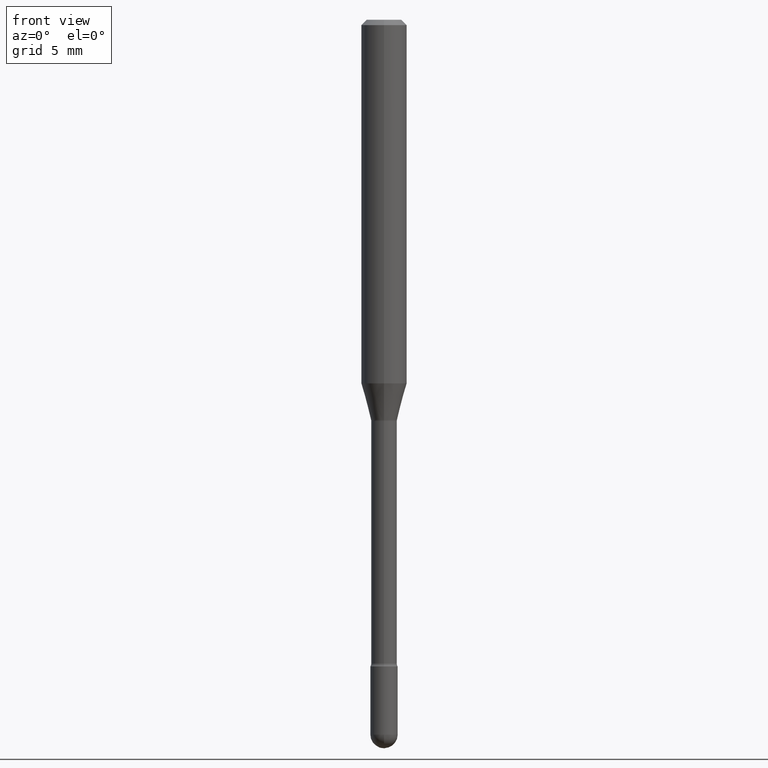
[diagram: clean part render]
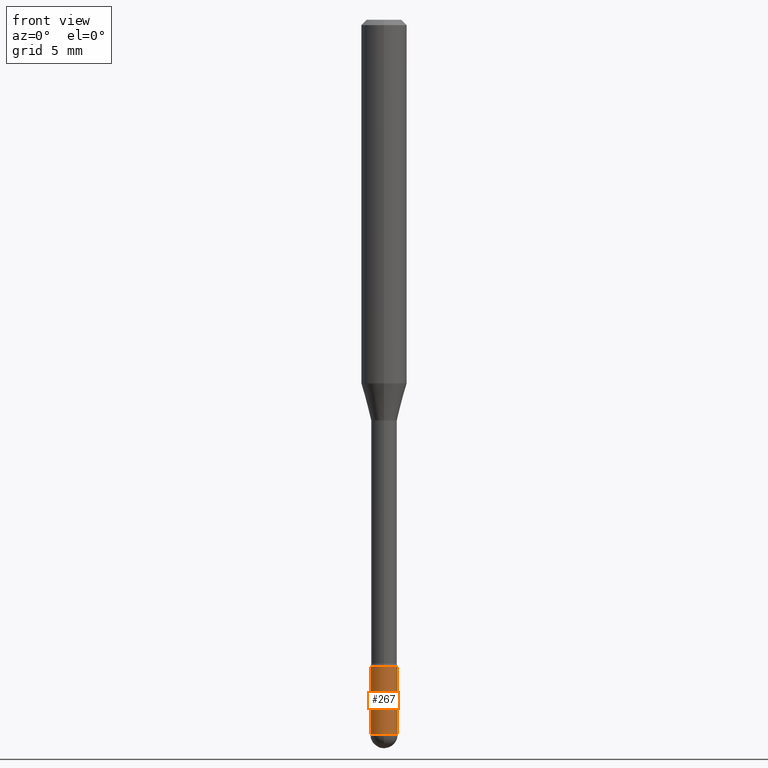
[diagram: same view with one face highlighted and labeled with its STEP entity id]
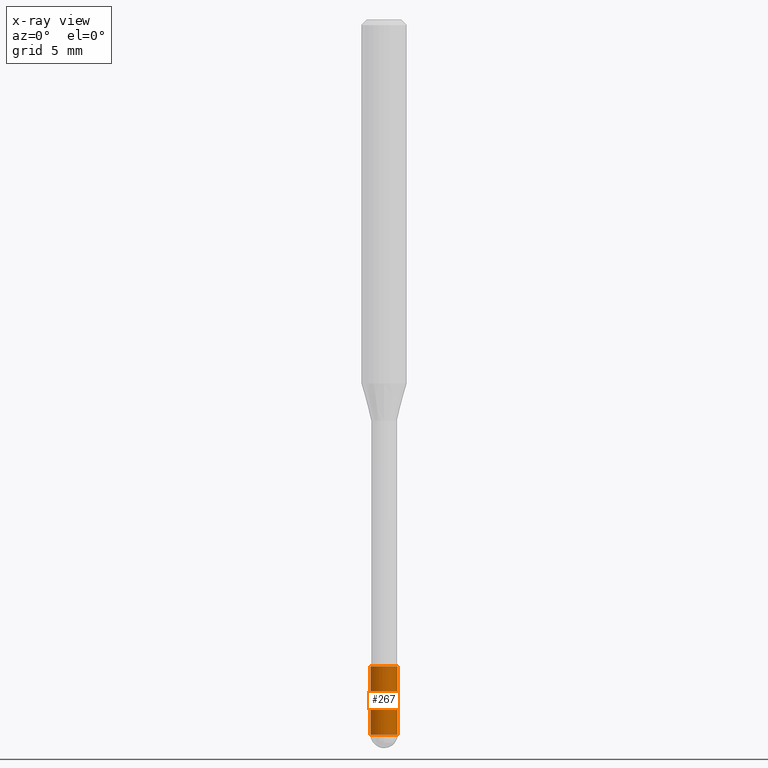
[diagram: x-ray of the same camera — body ghosted, the highlighted face saturated]
A machine part, front view. The second image highlights one B-rep face of the part: STEP entity #267.
The next image is the same camera in x-ray: the body ghosted, the highlighted face saturated — about 0% of this face is hidden behind the body in this view.
In plain terms, the highlighted cylindrical surface (edge-blend (fillet) strip) has radius 0.9525 mm, axis along (-0, 0, 1).
Its self-contained STEP definition (entity closure, byte-faithful):
#19 = VERTEX_POINT ( 'NONE', #195 ) ;
#40 = VERTEX_POINT ( 'NONE', #142 ) ;
#43 = EDGE_CURVE ( 'NONE', #40, #469, #308, .T. ) ;
#64 = LINE ( 'NONE', #515, #306 ) ;
#87 = VERTEX_POINT ( 'NONE', #194 ) ;
#91 = AXIS2_PLACEMENT_3D ( 'NONE', #140, #311, #155 ) ;
#95 = EDGE_CURVE ( 'NONE', #469, #19, #222, .T. ) ;
#100 = CYLINDRICAL_SURFACE ( 'NONE', #91, 0.03749999999999999861 ) ;
#108 = DIRECTION ( 'NONE',  ( 1.000000000000000000, -6.982962677686268288E-15, 0.000000000000000000 ) ) ;
#125 = ORIENTED_EDGE ( 'NONE', *, *, #43, .F. ) ;
#128 = CARTESIAN_POINT ( 'NONE',  ( 4.340707130978617347E-29, -6.197379376446583794E-15, -1.775000000000000133 ) ) ;
#140 = CARTESIAN_POINT ( 'NONE',  ( 0.000000000000000000, 0.000000000000000000, 0.000000000000000000 ) ) ;
#142 = CARTESIAN_POINT ( 'NONE',  ( -0.03749999999999999861, -6.258252226053091317E-15, -1.962499999999999689 ) ) ;
#149 = AXIS2_PLACEMENT_3D ( 'NONE', #158, #503, #108 ) ;
#155 = DIRECTION ( 'NONE',  ( 1.000000000000000000, -6.982962677686266711E-15, 4.876176775795935793E-29 ) ) ;
#158 = CARTESIAN_POINT ( 'NONE',  ( 4.799232532138329338E-29, -6.852032127479672087E-15, -1.962499999999999689 ) ) ;
#159 = ORIENTED_EDGE ( 'NONE', *, *, #95, .F. ) ;
#187 = ORIENTED_EDGE ( 'NONE', *, *, #501, .T. ) ;
#189 = ORIENTED_EDGE ( 'NONE', *, *, #247, .T. ) ;
#194 = CARTESIAN_POINT ( 'NONE',  ( -2.664535259099897351E-16, -0.03750000000000687506, -1.962499999999999689 ) ) ;
#195 = CARTESIAN_POINT ( 'NONE',  ( 0.03749999999999999861, -6.459240476859818795E-15, -1.775000000000000133 ) ) ;
#203 = DIRECTION ( 'NONE',  ( 1.000000000000000000, -6.982962677686268288E-15, 0.000000000000000000 ) ) ;
#222 = CIRCLE ( 'NONE', #278, 0.03749999999999999861 ) ;
#230 = AXIS2_PLACEMENT_3D ( 'NONE', #413, #408, #203 ) ;
#242 = EDGE_LOOP ( 'NONE', ( #125, #187, #273, #189, #159 ) ) ;
#247 = EDGE_CURVE ( 'NONE', #542, #19, #64, .T. ) ;
#267 = ADVANCED_FACE ( 'NONE', ( #271 ), #100, .T. ) ;
#271 = FACE_OUTER_BOUND ( 'NONE', #242, .T. ) ;
#273 = ORIENTED_EDGE ( 'NONE', *, *, #539, .T. ) ;
#276 = CARTESIAN_POINT ( 'NONE',  ( -0.03749999999999999861, -6.258252226053091317E-15, -1.775000000000000133 ) ) ;
#278 = AXIS2_PLACEMENT_3D ( 'NONE', #128, #566, #370 ) ;
#287 = CIRCLE ( 'NONE', #149, 0.03749999999999999861 ) ;
#294 = DIRECTION ( 'NONE',  ( -2.445468806185136877E-29, 3.491481338843145188E-15, 1.000000000000000000 ) ) ;
#306 = VECTOR ( 'NONE', #294, 39.37007874015748143 ) ;
#308 = LINE ( 'NONE', #436, #365 ) ;
#311 = DIRECTION ( 'NONE',  ( -2.445468806185136597E-29, 3.491481338843145583E-15, 1.000000000000000000 ) ) ;
#365 = VECTOR ( 'NONE', #479, 39.37007874015748143 ) ;
#370 = DIRECTION ( 'NONE',  ( 1.000000000000000000, -6.982962677686268288E-15, 0.000000000000000000 ) ) ;
#408 = DIRECTION ( 'NONE',  ( -2.445468806185136597E-29, 3.491481338843145583E-15, 1.000000000000000000 ) ) ;
#413 = CARTESIAN_POINT ( 'NONE',  ( 4.799232532138329338E-29, -6.852032127479672087E-15, -1.962499999999999689 ) ) ;
#436 = CARTESIAN_POINT ( 'NONE',  ( -0.03749999999999999861, 2.664535259100375598E-16, -1.844600658845589808E-30 ) ) ;
#452 = CARTESIAN_POINT ( 'NONE',  ( 0.03749999999999999861, -6.786566852376363731E-15, -1.962499999999999689 ) ) ;
#469 = VERTEX_POINT ( 'NONE', #276 ) ;
#479 = DIRECTION ( 'NONE',  ( -2.445468806185136877E-29, 3.491481338843145188E-15, 1.000000000000000000 ) ) ;
#501 = EDGE_CURVE ( 'NONE', #40, #87, #517, .T. ) ;
#503 = DIRECTION ( 'NONE',  ( -2.445468806185136597E-29, 3.491481338843145583E-15, 1.000000000000000000 ) ) ;
#515 = CARTESIAN_POINT ( 'NONE',  ( 0.03749999999999999861, -2.618611004132350016E-16, 1.828566290923475922E-30 ) ) ;
#517 = CIRCLE ( 'NONE', #230, 0.03749999999999999861 ) ;
#539 = EDGE_CURVE ( 'NONE', #87, #542, #287, .T. ) ;
#542 = VERTEX_POINT ( 'NONE', #452 ) ;
#566 = DIRECTION ( 'NONE',  ( -2.445468806185136597E-29, 3.491481338843145583E-15, 1.000000000000000000 ) ) ;